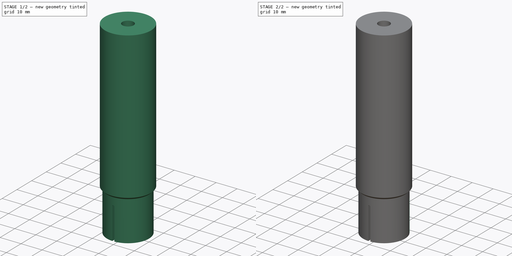
[diagram: build sequence overview — one tinted view per stage of 2, left to right]
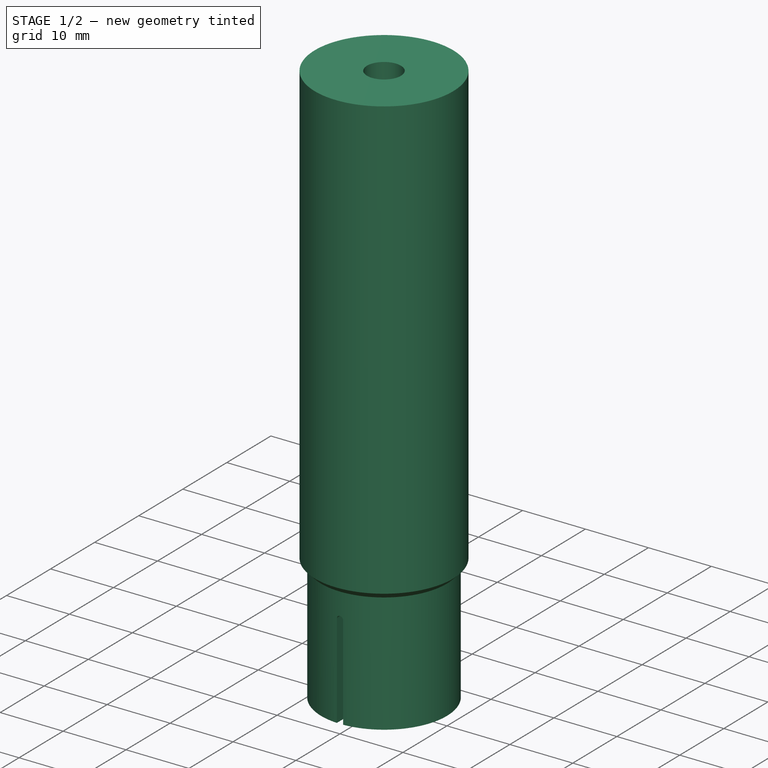
[diagram: stage 1 of 2 — iso view after this stage's code; geometry added in this stage tinted green]
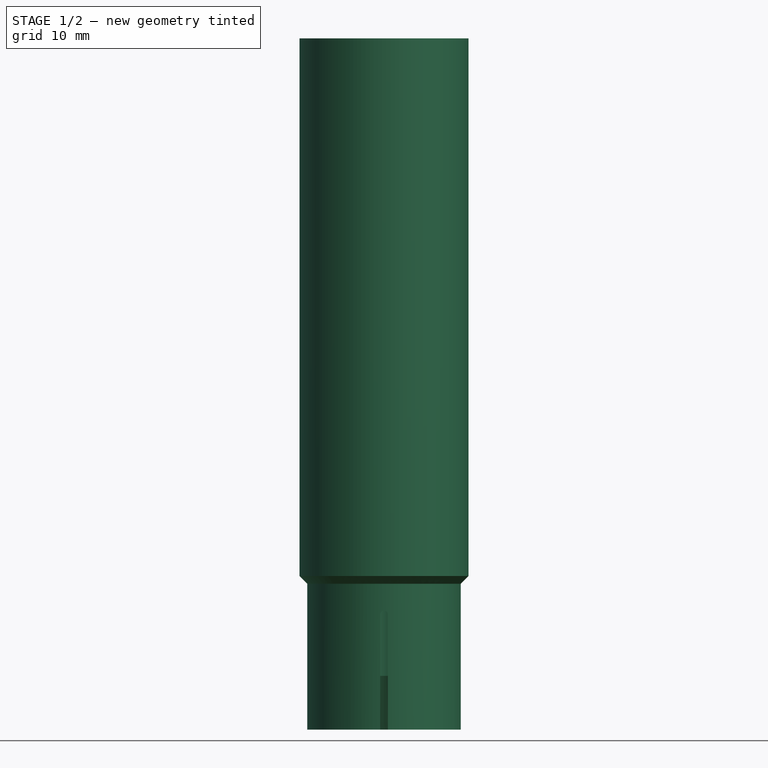
[diagram: stage 1 of 2 — front view after this stage's code; geometry added in this stage tinted green]
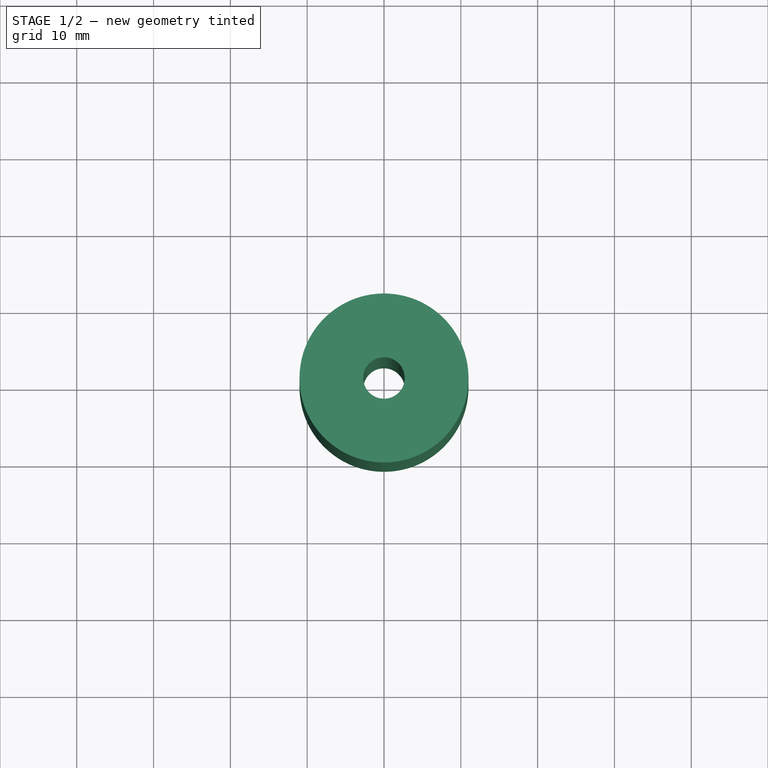
[diagram: stage 1 of 2 — top view after this stage's code; geometry added in this stage tinted green]
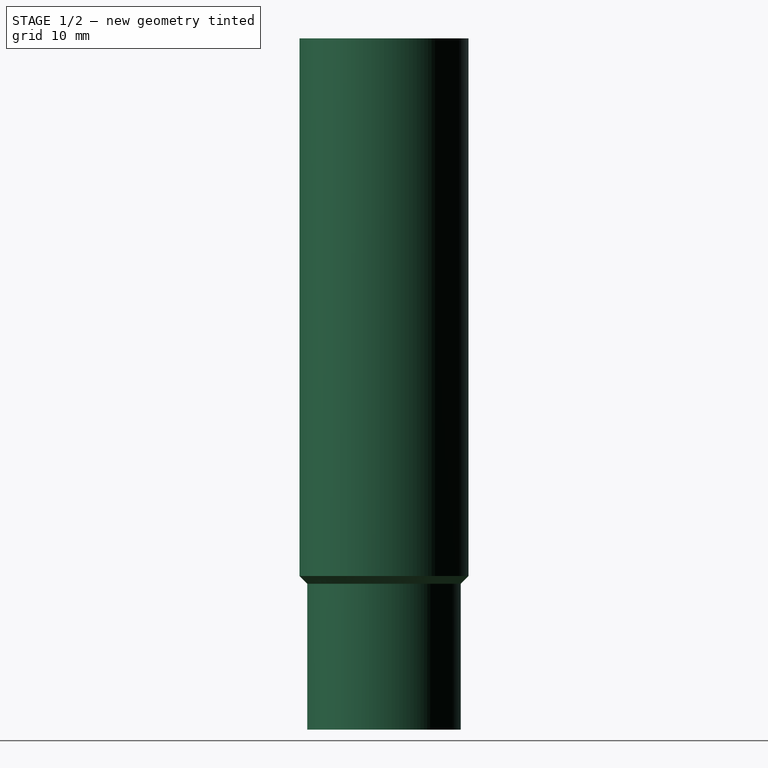
[diagram: stage 1 of 2 — right view after this stage's code; geometry added in this stage tinted green]
FCSTD DOCUMENT  (FreeCAD 0.20R27319 (Git))
Label: Stop
License: All rights reserved
LicenseURL: http://en.wikipedia.org/wiki/All_rights_reserved
objects: Sketcher::SketchObject×2, PartDesign::Revolution×1, PartDesign::Plane×1, PartDesign::Pocket×1, PartDesign::PolarPattern×1, PartDesign::Body×1, Spreadsheet::Sheet×1
note: 9 computed .brp shape members not serialized (recipe doc carries the construction recipe); baked Part::Feature solids carry a one-line shape summary decoded from their .brp
EXTERNAL_REF file=SharedDimensions.FCStd obj=Spreadsheet

FEATURE [Sketcher::SketchObject] Sketch
  FullyConstrained = true
  MapMode = 5
  Placement = pos=(0,0,0) rot=(1,0,0;1.5708rad)
  Support = -> [XZ_Plane]
  expr: Constraints[11] = <<SharedDimensions>>#Spreadsheet.HoleDiameter / 2
  expr: Constraints[18] = <<SharedDimensions>>#Spreadsheet.BenchThickness
  expr: Constraints[19] = 90 + 45 + 20
  expr: Constraints[5] = <<SharedDimensions>>#Spreadsheet.HoleDiameter / 2 + 1
  expr: Constraints[6] = <<SharedDimensions>>#Spreadsheet.BoltDiameter / 2
  expr: Constraints[7] = <<SharedDimensions>>#Spreadsheet.LongStopHeight
  sketch-geometry (7):
    g0: LineSegment StartX=2.7 StartY=70 StartZ=0 EndX=11 EndY=70 EndZ=0
    g1: LineSegment StartX=11 StartY=70 StartZ=0 EndX=11 EndY=0 EndZ=0
    g2: LineSegment StartX=10 StartY=-20 StartZ=0 EndX=5.96415 EndY=-20 EndZ=0
    g3: LineSegment StartX=2.7 StartY=-13 StartZ=0 EndX=2.7 EndY=70 EndZ=0
    g4: LineSegment StartX=11 StartY=0 StartZ=0 EndX=10 EndY=-1 EndZ=0
    g5: LineSegment StartX=10 StartY=-1 StartZ=0 EndX=10 EndY=-20 EndZ=0
    g6: LineSegment StartX=2.7 StartY=-13 StartZ=0 EndX=5.96415 EndY=-20 EndZ=0
  constraints (21):
    c: Coincident(g0,g1)
    c: Horizontal(g0)
    c: Horizontal(g2)
    c: Vertical(g1)
    c: Vertical(g3)
    c: Distance(g0,g-2) = 11
    c: Distance(g0,g-2) = 2.7
    c: Distance(g0,g-1) = 70
    c: Coincident(g0,g3)
    c: Coincident(g4,g5)
    c: Vertical(g5)
    c: Distance(g5,g-2) = 10
    c: Coincident(g1,g4)
    c: Coincident(g2,g5)
    c: Coincident(g3,g6)
    c: Coincident(g2,g6)
    c: PointOnObject(g1,g-1)
    c: Angle(g4,g1,g1) = 0.785398
    c: DistanceY(g2,g1) = 20
    c: Angle(g6,g3) = 2.70526
    c: DistanceY(g2,g3) = 7
FEATURE [PartDesign::Revolution] Revolution
  Angle = 360
  Axis = (0,-2e-16,1)
  Base = (0,0,0)
  Placement = pos=(0,0,0) rot=(1,0,0;1.5708rad)
  Profile = -> Sketch
  ReferenceAxis = -> Sketch [V_Axis]
  Reversed = true
FEATURE [PartDesign::Plane] DatumPlane
  AttachmentOffset = pos=(0,0,0) rot=(1,0,0;1.5708rad)
  Length = 60
  MapMode = 5
  Placement = pos=(0,4.4e-15,-20) rot=(1,0,0;4.71239rad)
  ResizeMode = 0
  Support = -> [Revolution]
  Width = 60
FEATURE [Sketcher::SketchObject] Sketch001
  FullyConstrained = true
  MapMode = 5
  Placement = pos=(0,4.4e-15,-20) rot=(-1,0,0;1.5708rad)
  Support = -> [DatumPlane]
  sketch-geometry (5):
    g0: LineSegment StartX=0.5 StartY=-15 StartZ=0 EndX=0.5 EndY=20 EndZ=0
    g1: LineSegment StartX=0.5 StartY=20 StartZ=0 EndX=-0.5 EndY=20 EndZ=0
    g2: LineSegment StartX=-0.5 StartY=20 StartZ=0 EndX=-0.5 EndY=-15 EndZ=0
    g3: GeomPoint X=0 Y=0 Z=0
    g4: ArcOfCircle CenterX=0 CenterY=-15 CenterZ=0 NormalX=0 NormalY=0 NormalZ=1 AngleXU=0 Radius=0.5 StartAngle=3.14159 EndAngle=6.28319
  constraints (12):
    c: Coincident(g0,g1)
    c: Coincident(g1,g2)
    c: Horizontal(g1)
    c: Vertical(g0)
    c: Vertical(g2)
    c: Coincident(g3,g-1)
    c: DistanceX(g1,g1) = 1
    c: DistanceY(g-1,g0) = 20
    c: Tangent(g0,g4) = -1.5708
    c: Tangent(g2,g4) = -1.5708
    c: PointOnObject(g4,g-2)
    c: DistanceY(g4,g-1) = 15
FEATURE [PartDesign::Pocket] Pocket
  BaseFeature = -> Revolution
  Direction = (0,-1,-2e-16)
  Length = 0
  Length2 = 1
  Placement = pos=(0,0,0) rot=(1,0,0;1.5708rad)
  Profile = -> Sketch001
  ReferenceAxis = -> Sketch001 [N_Axis]
  Type = 1
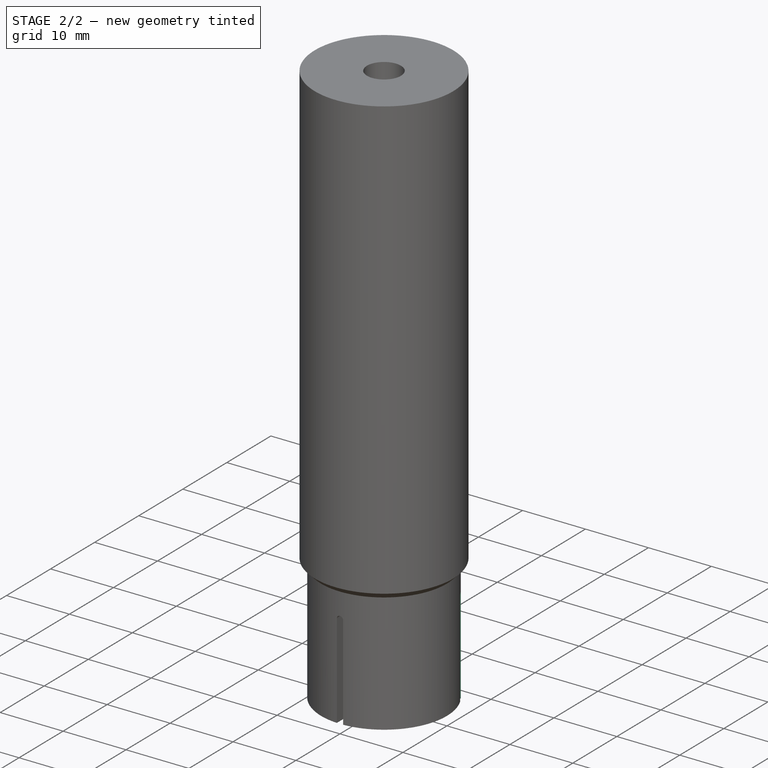
[diagram: stage 2 of 2 — iso view after this stage's code; geometry added in this stage tinted green]
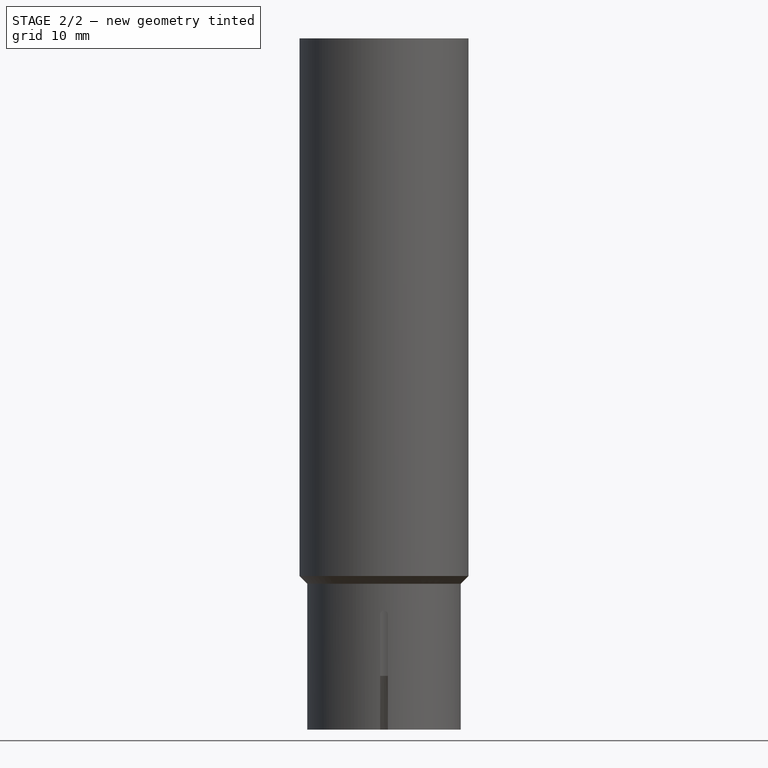
[diagram: stage 2 of 2 — front view after this stage's code; geometry added in this stage tinted green]
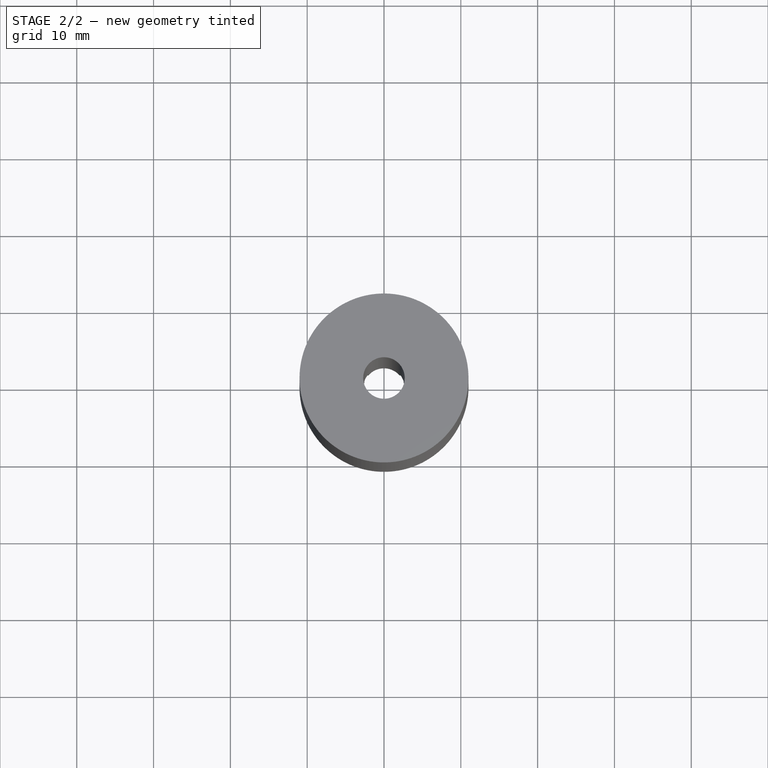
[diagram: stage 2 of 2 — top view after this stage's code; geometry added in this stage tinted green]
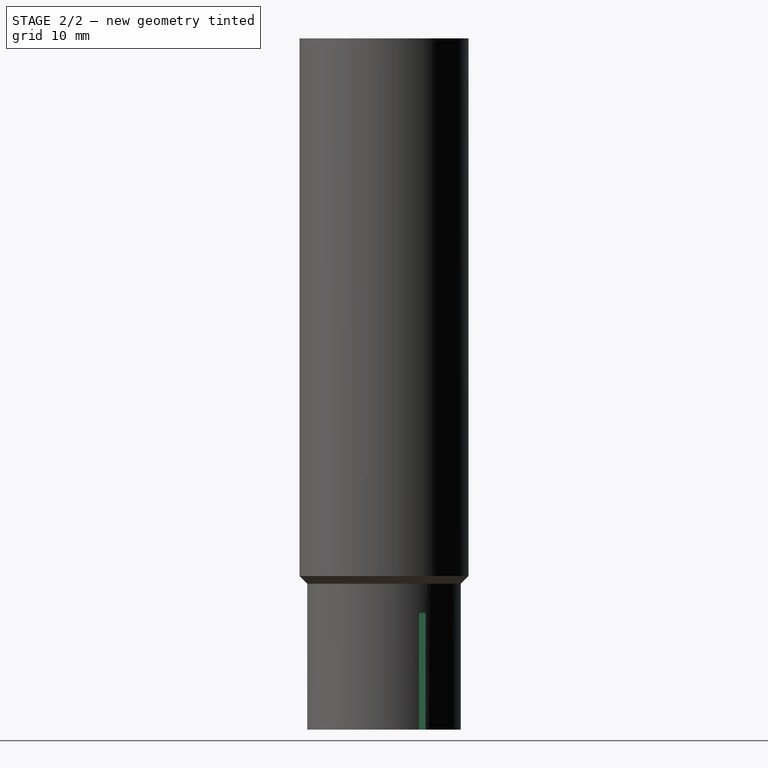
[diagram: stage 2 of 2 — right view after this stage's code; geometry added in this stage tinted green]
FEATURE [PartDesign::PolarPattern] PolarPattern
  Angle = 360
  Axis = -> Z_Axis
  BaseFeature = -> Pocket
  Occurrences = 3
  Originals = -> [Pocket]
  Overlap = 0
  Placement = pos=(0,0,0) rot=(1,0,0;1.5708rad)
FEATURE [PartDesign::Body] Body
  Group = -> [Sketch,Revolution,DatumPlane,Sketch001,Pocket,PolarPattern]
  Origin = -> Origin
  Tip = -> PolarPattern
FEATURE [Spreadsheet::Sheet] Spreadsheet  label="Parameters"
  cells = A1=StopHeight; B1(StopHeight)=70
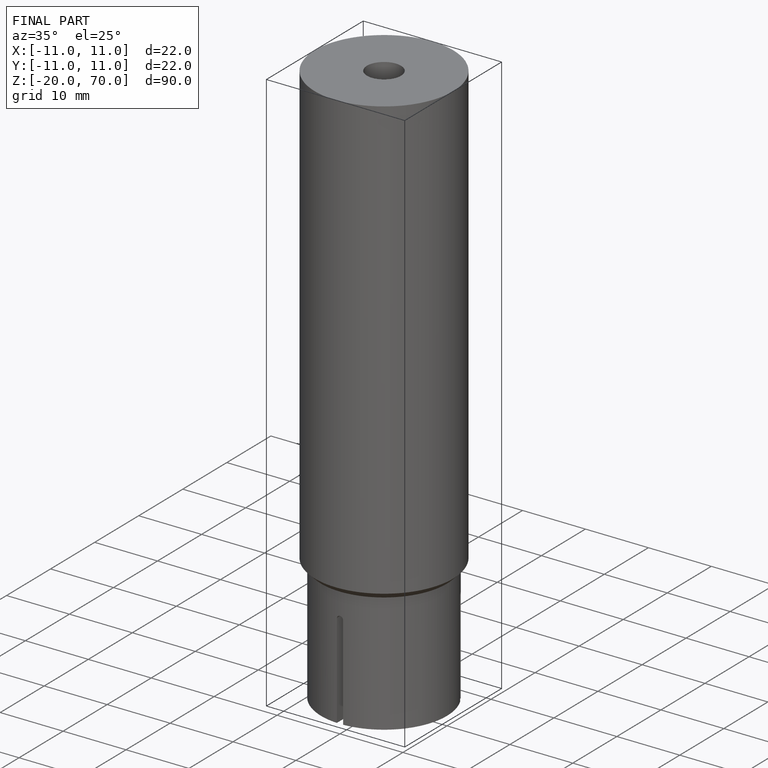
[diagram: finished part — iso view with bounding-box wireframe]
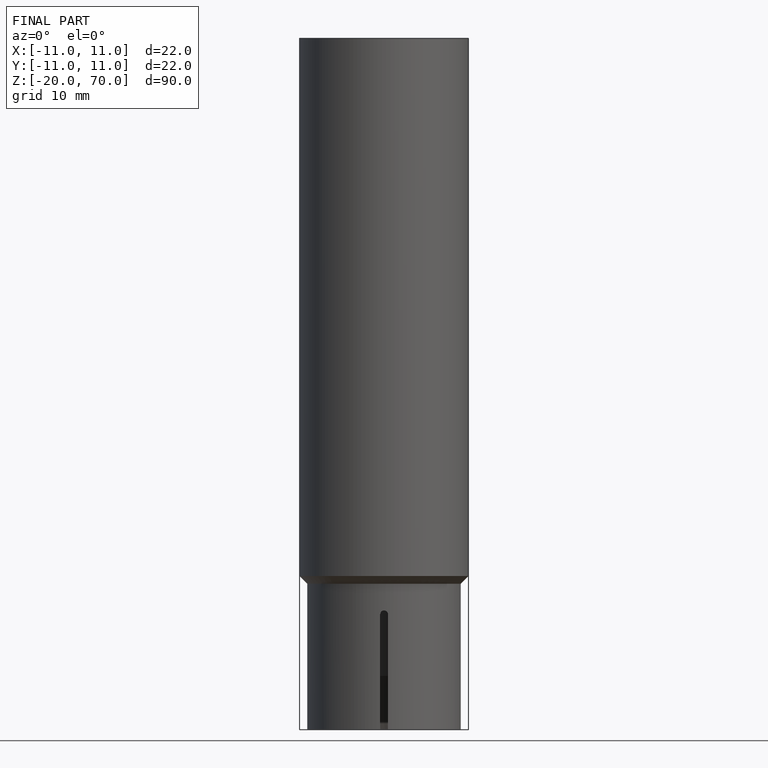
[diagram: finished part — front view with bounding-box wireframe]
